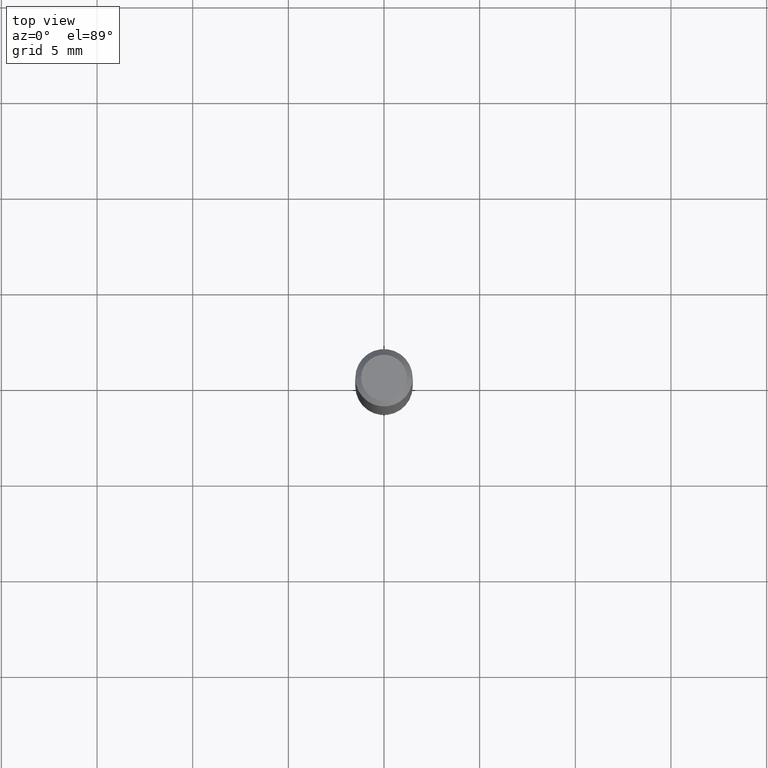
[diagram: clean part render]
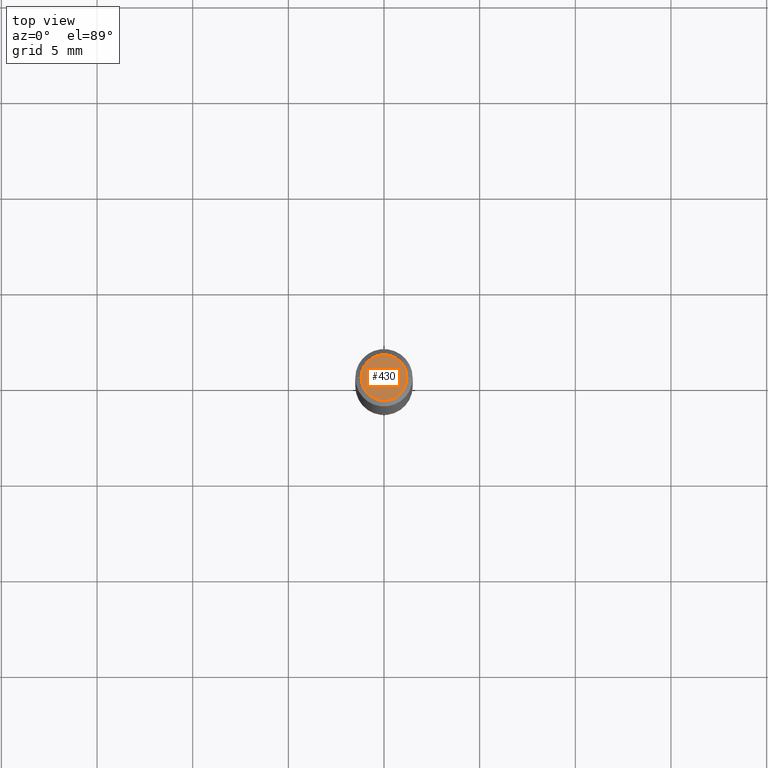
[diagram: same view with one face highlighted and labeled with its STEP entity id]
A machine part, top view. The second image highlights one B-rep face of the part: STEP entity #430.
In plain terms, the highlighted planar face has unit normal (0, -0, -1).
Its self-contained STEP definition (entity closure, byte-faithful):
#13 = VERTEX_POINT ( 'NONE', #393 ) ;
#35 = DIRECTION ( 'NONE',  ( -2.445468806185136597E-29, 3.491481338843145583E-15, 1.000000000000000000 ) ) ;
#38 = CARTESIAN_POINT ( 'NONE',  ( 8.265746106709734507E-48, -1.180129479067563789E-33, -3.380025165646692144E-19 ) ) ;
#48 = ORIENTED_EDGE ( 'NONE', *, *, #469, .T. ) ;
#51 = EDGE_CURVE ( 'NONE', #13, #135, #192, .T. ) ;
#61 = CARTESIAN_POINT ( 'NONE',  ( -0.04724000000000000421, 3.504923541997677355E-16, -3.380025165670481712E-19 ) ) ;
#81 = AXIS2_PLACEMENT_3D ( 'NONE', #451, #416, #257 ) ;
#122 = ORIENTED_EDGE ( 'NONE', *, *, #51, .T. ) ;
#133 = AXIS2_PLACEMENT_3D ( 'NONE', #38, #35, #362 ) ;
#135 = VERTEX_POINT ( 'NONE', #61 ) ;
#162 = CIRCLE ( 'NONE', #133, 0.04724000000000000421 ) ;
#192 = CIRCLE ( 'NONE', #462, 0.04724000000000000421 ) ;
#213 = CARTESIAN_POINT ( 'NONE',  ( 8.265746106709734507E-48, -1.180129479067563789E-33, -3.380025165646692144E-19 ) ) ;
#220 = FACE_OUTER_BOUND ( 'NONE', #415, .T. ) ;
#257 = DIRECTION ( 'NONE',  ( -1.000000000000000000, 6.982962677686265922E-15, -4.876176775795935793E-29 ) ) ;
#347 = DIRECTION ( 'NONE',  ( 1.000000000000000000, -6.982962677686266711E-15, 4.876185090822587894E-29 ) ) ;
#357 = DIRECTION ( 'NONE',  ( -2.445468806185136597E-29, 3.491481338843145583E-15, 1.000000000000000000 ) ) ;
#362 = DIRECTION ( 'NONE',  ( 1.000000000000000000, -6.982962677686266711E-15, 4.876185090822587894E-29 ) ) ;
#393 = CARTESIAN_POINT ( 'NONE',  ( 0.04724000000000000421, -3.852183633974369838E-16, -3.380025165621689721E-19 ) ) ;
#406 = PLANE ( 'NONE',  #81 ) ;
#415 = EDGE_LOOP ( 'NONE', ( #48, #122 ) ) ;
#416 = DIRECTION ( 'NONE',  ( 2.438088387897960049E-29, -3.491481338843145188E-15, -1.000000000000000000 ) ) ;
#430 = ADVANCED_FACE ( 'NONE', ( #220 ), #406, .F. ) ;
#451 = CARTESIAN_POINT ( 'NONE',  ( 4.132873053354867254E-48, -5.900647395337818946E-34, -1.690012582823346072E-19 ) ) ;
#462 = AXIS2_PLACEMENT_3D ( 'NONE', #213, #357, #347 ) ;
#469 = EDGE_CURVE ( 'NONE', #135, #13, #162, .T. ) ;